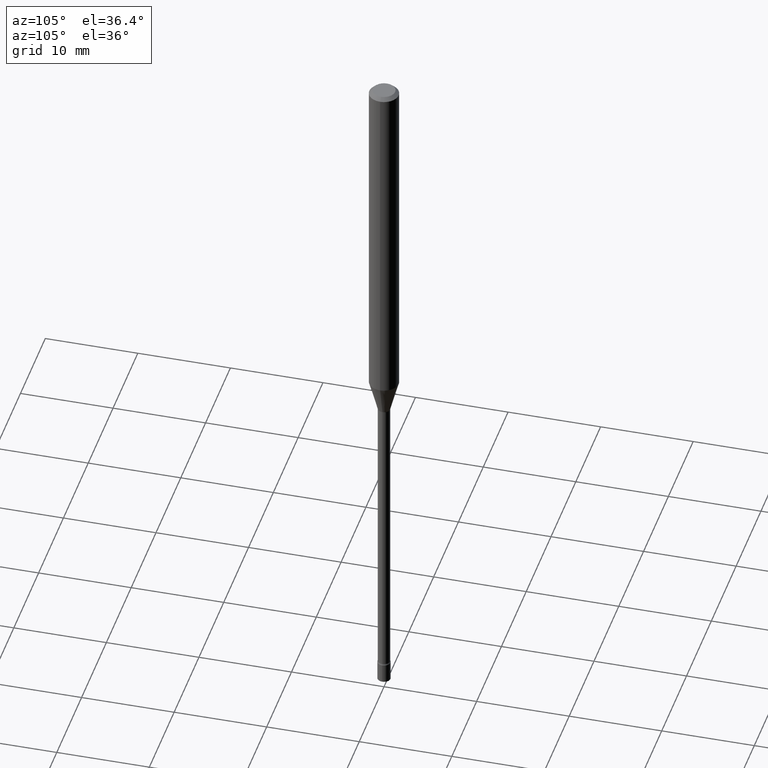
[diagram: clean part render]
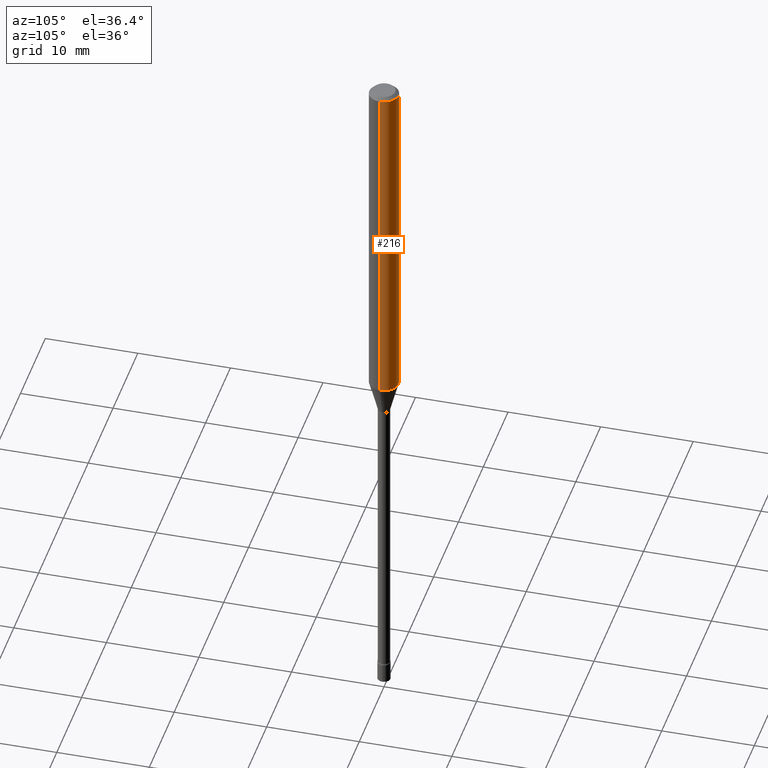
[diagram: same view with one face highlighted and labeled with its STEP entity id]
A machine part, auxiliary view. The second image highlights one B-rep face of the part: STEP entity #216.
In plain terms, the highlighted cylindrical surface (edge-blend (fillet) strip) has radius 1.5875 mm, axis along (-0, 0, 1).
Its self-contained STEP definition (entity closure, byte-faithful):
#11 = DIRECTION ( 'NONE',  ( 1.000000000000000000, -6.982962677686266711E-15, 0.000000000000000000 ) ) ;
#28 = DIRECTION ( 'NONE',  ( 1.000000000000000000, -6.982962677686262766E-15, 0.000000000000000000 ) ) ;
#29 = EDGE_CURVE ( 'NONE', #221, #420, #519, .T. ) ;
#31 = DIRECTION ( 'NONE',  ( -2.445468806185136877E-29, 3.491481338843145188E-15, 1.000000000000000000 ) ) ;
#33 = CARTESIAN_POINT ( 'NONE',  ( 0.000000000000000000, 0.000000000000000000, 0.000000000000000000 ) ) ;
#53 = ORIENTED_EDGE ( 'NONE', *, *, #435, .F. ) ;
#69 = DIRECTION ( 'NONE',  ( -2.445468806185136597E-29, 3.491481338843145583E-15, 1.000000000000000000 ) ) ;
#88 = CARTESIAN_POINT ( 'NONE',  ( 3.668203209277712094E-31, -5.237222008264728876E-17, -0.01500000000000003067 ) ) ;
#105 = ORIENTED_EDGE ( 'NONE', *, *, #29, .T. ) ;
#108 = AXIS2_PLACEMENT_3D ( 'NONE', #258, #69, #28 ) ;
#109 = CARTESIAN_POINT ( 'NONE',  ( -0.06250000000000000000, 4.440892098500626162E-16, -3.074334431409316114E-30 ) ) ;
#131 = EDGE_CURVE ( 'NONE', #420, #209, #226, .T. ) ;
#135 = VECTOR ( 'NONE', #31, 39.37007874015748143 ) ;
#152 = EDGE_LOOP ( 'NONE', ( #105, #205, #53, #308 ) ) ;
#161 = DIRECTION ( 'NONE',  ( -2.445468806185136877E-29, 3.491481338843145188E-15, 1.000000000000000000 ) ) ;
#171 = CARTESIAN_POINT ( 'NONE',  ( -0.06250000000000000000, -4.752004328023710079E-15, -1.488220337902601109 ) ) ;
#205 = ORIENTED_EDGE ( 'NONE', *, *, #131, .T. ) ;
#206 = DIRECTION ( 'NONE',  ( 1.000000000000000000, -6.982962677686266711E-15, 4.876176775795935793E-29 ) ) ;
#209 = VERTEX_POINT ( 'NONE', #503 ) ;
#216 = ADVANCED_FACE ( 'NONE', ( #270 ), #327, .T. ) ;
#217 = DIRECTION ( 'NONE',  ( -2.445468806185136597E-29, 3.491481338843145583E-15, 1.000000000000000000 ) ) ;
#221 = VERTEX_POINT ( 'NONE', #356 ) ;
#226 = LINE ( 'NONE', #109, #135 ) ;
#242 = CIRCLE ( 'NONE', #470, 0.06250000000000000000 ) ;
#246 = CARTESIAN_POINT ( 'NONE',  ( 0.06250000000000000000, -4.888073874380389458E-16, -0.01500000000000003067 ) ) ;
#248 = LINE ( 'NONE', #281, #468 ) ;
#258 = CARTESIAN_POINT ( 'NONE',  ( 3.639396413071114317E-29, -5.196093537873772696E-15, -1.488220337902601109 ) ) ;
#270 = FACE_OUTER_BOUND ( 'NONE', #152, .T. ) ;
#278 = DIRECTION ( 'NONE',  ( -2.445468806185136597E-29, 3.491481338843145583E-15, 1.000000000000000000 ) ) ;
#281 = CARTESIAN_POINT ( 'NONE',  ( 0.06250000000000000000, -4.364351673553916694E-16, 3.047610484872459871E-30 ) ) ;
#308 = ORIENTED_EDGE ( 'NONE', *, *, #349, .F. ) ;
#319 = VERTEX_POINT ( 'NONE', #246 ) ;
#327 = CYLINDRICAL_SURFACE ( 'NONE', #375, 0.06250000000000000000 ) ;
#349 = EDGE_CURVE ( 'NONE', #221, #319, #248, .T. ) ;
#356 = CARTESIAN_POINT ( 'NONE',  ( 0.06250000000000000000, -5.632528705229164365E-15, -1.488220337902601109 ) ) ;
#375 = AXIS2_PLACEMENT_3D ( 'NONE', #33, #278, #206 ) ;
#420 = VERTEX_POINT ( 'NONE', #171 ) ;
#435 = EDGE_CURVE ( 'NONE', #319, #209, #242, .T. ) ;
#468 = VECTOR ( 'NONE', #161, 39.37007874015748143 ) ;
#470 = AXIS2_PLACEMENT_3D ( 'NONE', #88, #217, #11 ) ;
#503 = CARTESIAN_POINT ( 'NONE',  ( -0.06250000000000000000, -2.180143669128147468E-15, -0.01500000000000003067 ) ) ;
#519 = CIRCLE ( 'NONE', #108, 0.06250000000000000000 ) ;